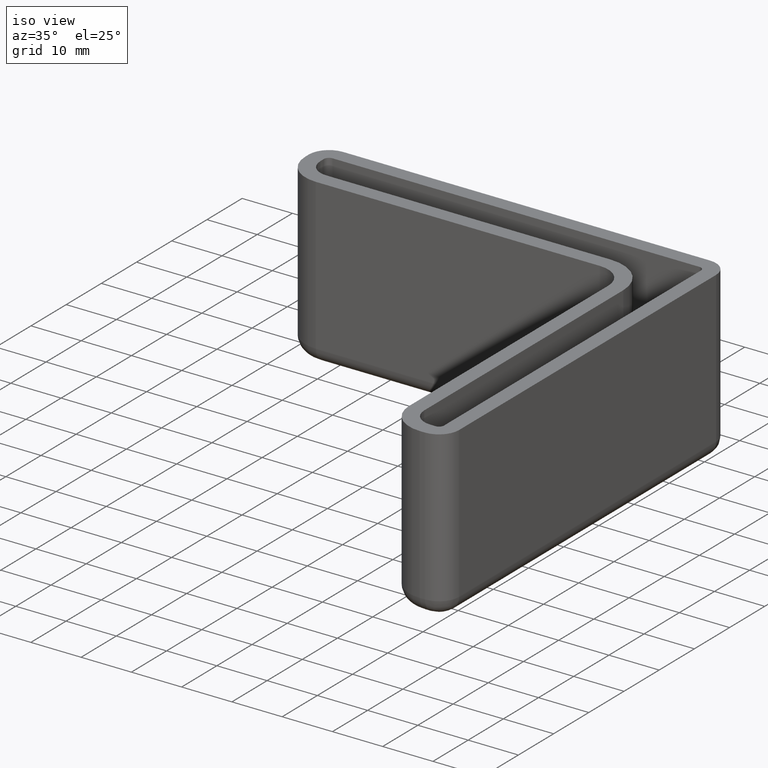
[diagram: clean part render]
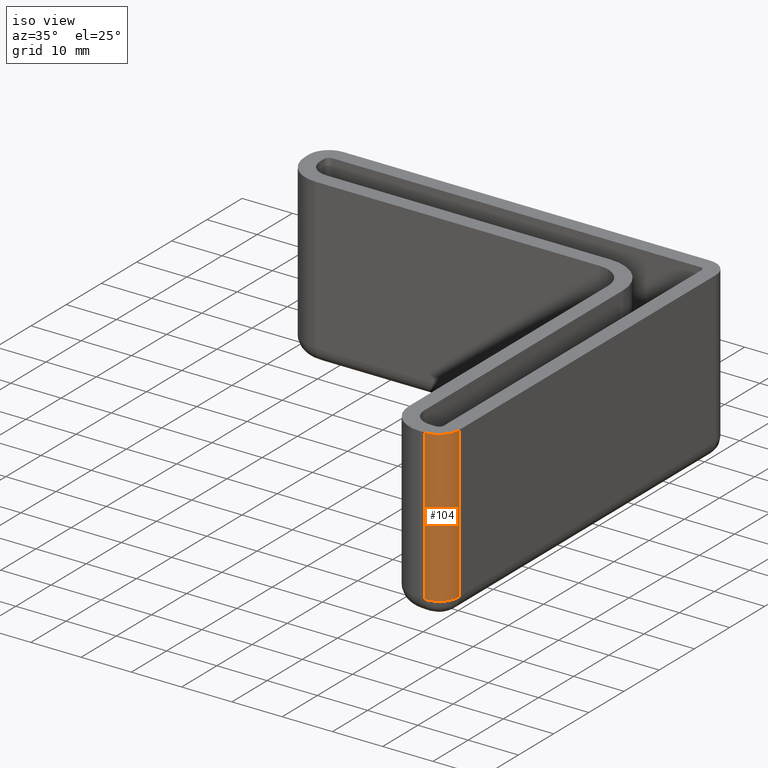
[diagram: same view with one face highlighted and labeled with its STEP entity id]
A machine part, iso view. The second image highlights one B-rep face of the part: STEP entity #104.
In plain terms, the highlighted cylindrical surface (edge-blend (fillet) strip) has radius 4 mm, axis along (-0, 0, -1).
Its self-contained STEP definition (entity closure, byte-faithful):
#104 = ADVANCED_FACE( '', ( #174 ), #175, .T. );
#174 = FACE_OUTER_BOUND( '', #268, .T. );
#175 = CYLINDRICAL_SURFACE( '', #269, 4.00000000000000 );
#268 = EDGE_LOOP( '', ( #554, #555, #556, #557 ) );
#269 = AXIS2_PLACEMENT_3D( '', #558, #559, #560 );
#554 = ORIENTED_EDGE( '', *, *, #704, .F. );
#555 = ORIENTED_EDGE( '', *, *, #705, .T. );
#556 = ORIENTED_EDGE( '', *, *, #665, .T. );
#557 = ORIENTED_EDGE( '', *, *, #706, .T. );
#558 = CARTESIAN_POINT( '', ( -0.999999999999997, -74.0000000000000, -30.0000000000000 ) );
#559 = DIRECTION( '', ( -3.58678896750442E-017, 8.65927457071936E-017, -1.00000000000000 ) );
#560 = DIRECTION( '', ( 0.707106781186549, -0.707106781186546, -8.65927457071935E-017 ) );
#665 = EDGE_CURVE( '', #794, #792, #795, .T. );
#704 = EDGE_CURVE( '', #858, #859, #860, .T. );
#705 = EDGE_CURVE( '', #858, #794, #861, .T. );
#706 = EDGE_CURVE( '', #792, #859, #862, .T. );
#792 = VERTEX_POINT( '', #969 );
#794 = VERTEX_POINT( '', #972 );
#795 = CIRCLE( '', #973, 4.00000000000000 );
#858 = VERTEX_POINT( '', #1062 );
#859 = VERTEX_POINT( '', #1063 );
#860 = CIRCLE( '', #1064, 4.00000000000000 );
#861 = LINE( '', #1065, #1066 );
#862 = LINE( '', #1067, #1068 );
#969 = CARTESIAN_POINT( '', ( -0.999999999999997, -78.0000000000000, -6.84082691086829E-015 ) );
#972 = CARTESIAN_POINT( '', ( 3.00000000000000, -74.0000000000000, -6.14808494521074E-015 ) );
#973 = AXIS2_PLACEMENT_3D( '', #1177, #1178, #1179 );
#1062 = CARTESIAN_POINT( '', ( 3.00000000000001, -74.0000000000000, -30.0000000000000 ) );
#1063 = CARTESIAN_POINT( '', ( -0.999999999999990, -78.0000000000000, -30.0000000000000 ) );
#1064 = AXIS2_PLACEMENT_3D( '', #1242, #1243, #1244 );
#1065 = CARTESIAN_POINT( '', ( 3.00000000000001, -74.0000000000000, -30.0000000000000 ) );
#1066 = VECTOR( '', #1245, 1000.00000000000 );
#1067 = CARTESIAN_POINT( '', ( -0.999999999999990, -78.0000000000000, -30.0000000000000 ) );
#1068 = VECTOR( '', #1246, 1000.00000000000 );
#1177 = CARTESIAN_POINT( '', ( -0.999999999999997, -74.0000000000000, -6.49445592803952E-015 ) );
#1178 = DIRECTION( '', ( -3.58678896750442E-017, 8.65927457071936E-017, -1.00000000000000 ) );
#1179 = DIRECTION( '', ( 0.707106781186549, -0.707106781186546, -8.65927457071935E-017 ) );
#1242 = CARTESIAN_POINT( '', ( -0.999999999999997, -74.0000000000000, -30.0000000000000 ) );
#1243 = DIRECTION( '', ( -3.58678896750442E-017, 8.65927457071936E-017, -1.00000000000000 ) );
#1244 = DIRECTION( '', ( 0.707106781186547, -0.707106781186548, -8.65927457071936E-017 ) );
#1245 = DIRECTION( '', ( 3.58678896750442E-017, -8.65927457071936E-017, 1.00000000000000 ) );
#1246 = DIRECTION( '', ( -3.58678896750442E-017, 8.65927457071936E-017, -1.00000000000000 ) );